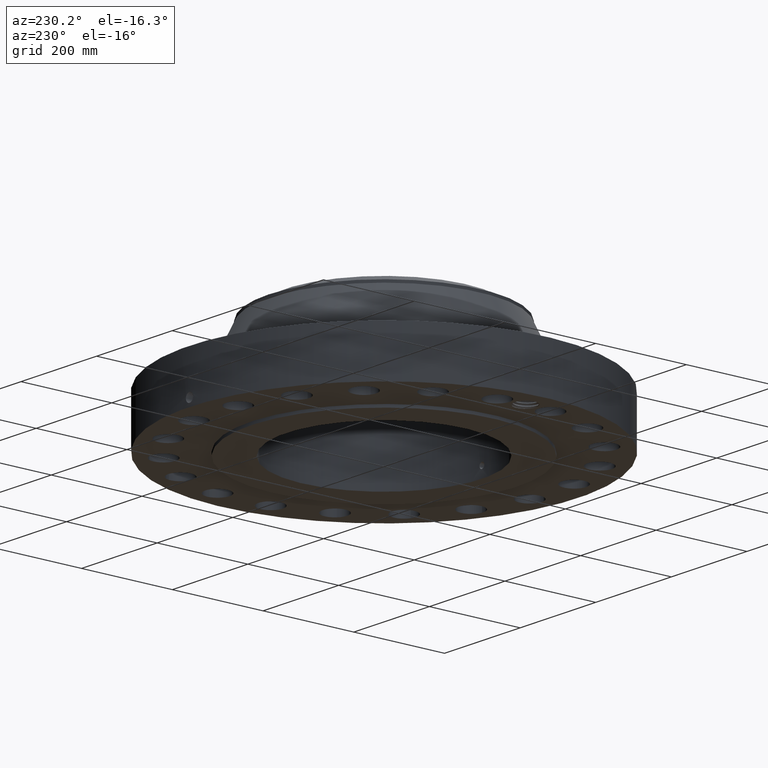
[diagram: clean part render]
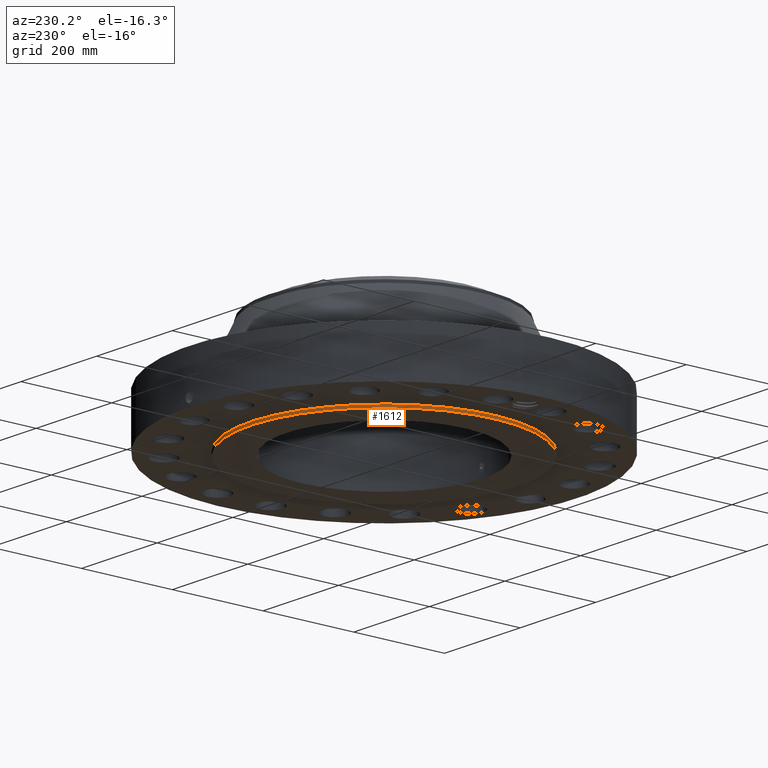
[diagram: same view with one face highlighted and labeled with its STEP entity id]
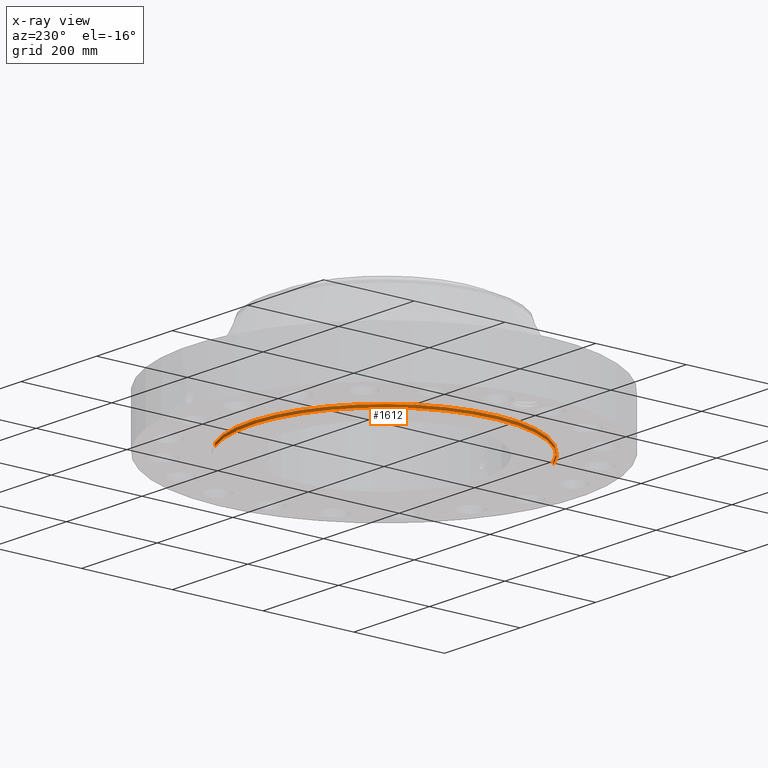
[diagram: x-ray of the same camera — body ghosted, the highlighted face saturated]
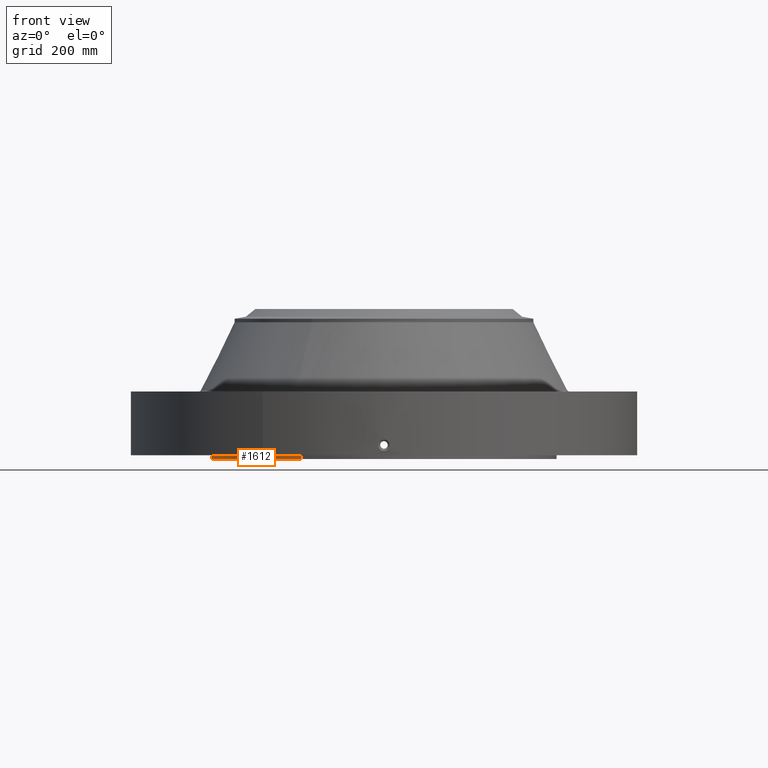
[diagram: same view with one face highlighted and labeled with its STEP entity id]
A machine part, auxiliary view. The second image highlights one B-rep face of the part: STEP entity #1612.
The next image is the same camera in x-ray: the body ghosted, the highlighted face saturated — about 0% of this face is hidden behind the body in this view.
A second angle (front view) of the same face is appended — the face is thin or edge-on in the first view.
In plain terms, the highlighted cylindrical surface (partial cylindrical patch) has radius 292.1 mm, axis along (0, 0, -1).
Its self-contained STEP definition (entity closure, byte-faithful):
#271=AXIS2_PLACEMENT_3D('Circle Axis2P3D',#269,#270,$) ;
#1573=AXIS2_PLACEMENT_3D('Cylinder Axis2P3D',#1570,#1571,#1572) ;
#1603=AXIS2_PLACEMENT_3D('Circle Axis2P3D',#1601,#1602,$) ;
#264=CARTESIAN_POINT('Vertex',(5.51339369397,10.0921994618,0.250000000001)) ;
#266=CARTESIAN_POINT('Vertex',(-5.51339369397,-10.0921994618,0.250000000001)) ;
#269=CARTESIAN_POINT('Axis2P3D Location',(0.,0.,0.250000000001)) ;
#1570=CARTESIAN_POINT('Axis2P3D Location',(0.,0.,5.00000000002)) ;
#1579=CARTESIAN_POINT('Vertex',(5.51339369397,10.0921994618,1.1189649382E-015)) ;
#1581=CARTESIAN_POINT('Vertex',(-5.51339369397,-10.0921994618,1.1189649382E-015)) ;
#1584=CARTESIAN_POINT('Line Origine',(5.51339369397,10.0921994618,0.125000000001)) ;
#1589=CARTESIAN_POINT('Line Origine',(-5.51339369397,-10.0921994618,0.125000000001)) ;
#1601=CARTESIAN_POINT('Axis2P3D Location',(0.,0.,1.1189649382E-015)) ;
#270=DIRECTION('Axis2P3D Direction',(0.,0.,-0.0393700787402)) ;
#1571=DIRECTION('Axis2P3D Direction',(0.,0.,-0.0393700787402)) ;
#1572=DIRECTION('Axis2P3D XDirection',(-0.0188750212049,-0.0345504945626,0.)) ;
#1585=DIRECTION('Vector Direction',(0.,0.,-0.0393700787402)) ;
#1590=DIRECTION('Vector Direction',(0.,0.,-0.0393700787402)) ;
#1602=DIRECTION('Axis2P3D Direction',(0.,0.,-0.0393700787402)) ;
#1586=VECTOR('Line Direction',#1585,0.0393700787402) ;
#1591=VECTOR('Line Direction',#1590,0.0393700787402) ;
#1607=ORIENTED_EDGE('',*,*,#1605,.F.) ;
#1608=ORIENTED_EDGE('',*,*,#1593,.T.) ;
#1609=ORIENTED_EDGE('',*,*,#273,.T.) ;
#1610=ORIENTED_EDGE('',*,*,#1588,.F.) ;
#1612=ADVANCED_FACE('PartBody',(#1611),#1574,.T.) ;
#272=CIRCLE('generated circle',#271,11.5) ;
#1604=CIRCLE('generated circle',#1603,11.5) ;
#1574=CYLINDRICAL_SURFACE('generated cylinder',#1573,11.5) ;
#273=EDGE_CURVE('',#267,#265,#272,.T.) ;
#1588=EDGE_CURVE('',#1580,#265,#1587,.F.) ;
#1593=EDGE_CURVE('',#1582,#267,#1592,.F.) ;
#1605=EDGE_CURVE('',#1582,#1580,#1604,.T.) ;
#1606=EDGE_LOOP('',(#1607,#1608,#1609,#1610)) ;
#1611=FACE_OUTER_BOUND('',#1606,.T.) ;
#1587=LINE('Line',#1584,#1586) ;
#1592=LINE('Line',#1589,#1591) ;
#265=VERTEX_POINT('',#264) ;
#267=VERTEX_POINT('',#266) ;
#1580=VERTEX_POINT('',#1579) ;
#1582=VERTEX_POINT('',#1581) ;